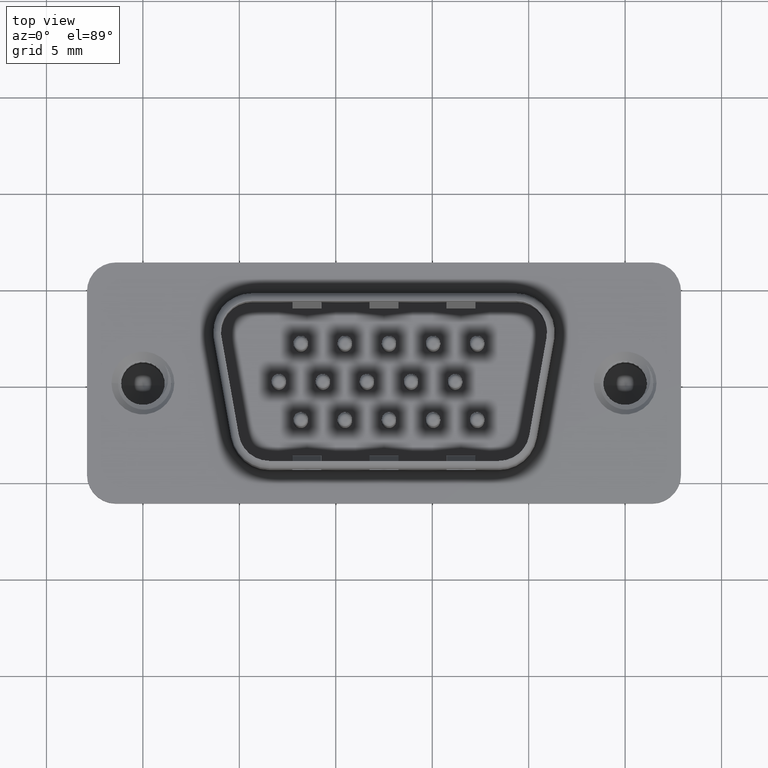
[diagram: clean part render]
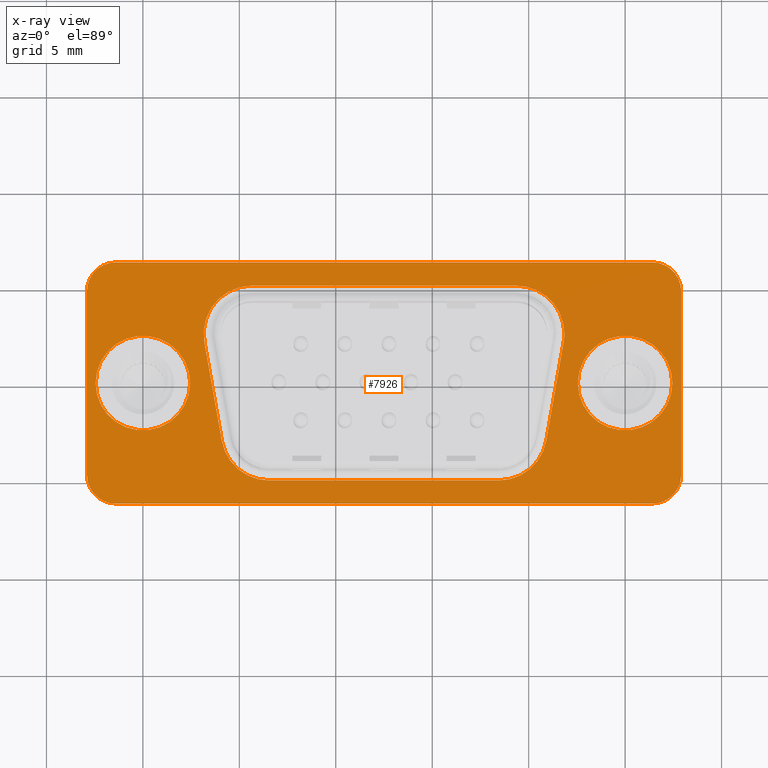
[diagram: x-ray — body ghosted, one internal face saturated and labeled with its STEP entity id]
A machine part, top view, then the same camera in x-ray: the body is ghosted and one INTERNAL B-rep face — a face not visible from any outside direction — is saturated and labeled: STEP entity #7926.
In plain terms, the highlighted planar face has unit normal (0, 0, 1).
Its self-contained STEP definition (entity closure, byte-faithful):
#47 = CARTESIAN_POINT ( 'NONE',  ( 21.85000000000000900, 2.550000000000000300, -2.168404344971008900E-016 ) ) ;
#56 = DIRECTION ( 'NONE',  ( -0.0000000000000000000, -0.0000000000000000000, -1.000000000000000000 ) ) ;
#93 = VERTEX_POINT ( 'NONE', #3351 ) ;
#225 = CARTESIAN_POINT ( 'NONE',  ( -1.399999999999998600, 4.750000000000001800, 0.0000000000000000000 ) ) ;
#278 = DIRECTION ( 'NONE',  ( 1.000000000000000000, 0.0000000000000000000, -0.0000000000000000000 ) ) ;
#288 = CARTESIAN_POINT ( 'NONE',  ( 25.00000000000000000, 4.592425496802574400E-015, 0.0000000000000000000 ) ) ;
#481 = CARTESIAN_POINT ( 'NONE',  ( 26.40000000000001300, 6.250000000000006200, 0.0000000000000000000 ) ) ;
#504 = CARTESIAN_POINT ( 'NONE',  ( -1.399999999999998600, 6.250000000000000900, 0.0000000000000000000 ) ) ;
#507 = EDGE_CURVE ( 'NONE', #16528, #2810, #9299, .T. ) ;
#548 = VERTEX_POINT ( 'NONE', #1037 ) ;
#790 = VERTEX_POINT ( 'NONE', #5424 ) ;
#876 = LINE ( 'NONE', #1041, #6902 ) ;
#947 = DIRECTION ( 'NONE',  ( -0.0000000000000000000, -0.0000000000000000000, -1.000000000000000000 ) ) ;
#1024 = CIRCLE ( 'NONE', #10350, 2.449999999999990400 ) ;
#1037 = CARTESIAN_POINT ( 'NONE',  ( 18.45073239838687600, -5.049999999999998000, 0.0000000000000000000 ) ) ;
#1041 = CARTESIAN_POINT ( 'NONE',  ( 26.40000000000001300, -5.049999999999998000, 0.0000000000000000000 ) ) ;
#1278 = DIRECTION ( 'NONE',  ( -0.0000000000000000000, -0.0000000000000000000, -1.000000000000000000 ) ) ;
#1377 = EDGE_CURVE ( 'NONE', #14141, #93, #5396, .T. ) ;
#1474 = CARTESIAN_POINT ( 'NONE',  ( -2.899999999999998100, -4.750000000000000900, 0.0000000000000000000 ) ) ;
#1554 = ORIENTED_EDGE ( 'NONE', *, *, #11296, .F. ) ;
#1605 = DIRECTION ( 'NONE',  ( 1.000000000000000000, 0.0000000000000000000, 0.0000000000000000000 ) ) ;
#1747 = CIRCLE ( 'NONE', #16416, 2.499999999999998700 ) ;
#1756 = CIRCLE ( 'NONE', #10629, 2.500000000000000400 ) ;
#2075 = ORIENTED_EDGE ( 'NONE', *, *, #13007, .F. ) ;
#2336 = CARTESIAN_POINT ( 'NONE',  ( 26.40000000000000600, -6.249999999999996400, 0.0000000000000000000 ) ) ;
#2579 = CIRCLE ( 'NONE', #9063, 2.500000000000002200 ) ;
#2608 = CARTESIAN_POINT ( 'NONE',  ( 18.45073239838687600, -2.549999999999999800, -2.168404344971008900E-016 ) ) ;
#2619 = EDGE_CURVE ( 'NONE', #12920, #15774, #8170, .T. ) ;
#2635 = VECTOR ( 'NONE', #5265, 1000.000000000000100 ) ;
#2732 = DIRECTION ( 'NONE',  ( -0.0000000000000000000, -1.000000000000000000, -0.0000000000000000000 ) ) ;
#2756 = CARTESIAN_POINT ( 'NONE',  ( 22.55000000000001100, 4.892463962593675200E-015, 0.0000000000000000000 ) ) ;
#2810 = VERTEX_POINT ( 'NONE', #4463 ) ;
#3034 = EDGE_CURVE ( 'NONE', #6780, #9403, #13539, .T. ) ;
#3351 = CARTESIAN_POINT ( 'NONE',  ( 19.35000000000000500, 5.050000000000000700, 0.0000000000000000000 ) ) ;
#3371 = ORIENTED_EDGE ( 'NONE', *, *, #14573, .F. ) ;
#3375 = VERTEX_POINT ( 'NONE', #4648 ) ;
#3747 = AXIS2_PLACEMENT_3D ( 'NONE', #9196, #947, #10570 ) ;
#3776 = VERTEX_POINT ( 'NONE', #16109 ) ;
#3825 = LINE ( 'NONE', #1474, #13876 ) ;
#3995 = DIRECTION ( 'NONE',  ( 1.000000000000000000, 0.0000000000000000000, 0.0000000000000000000 ) ) ;
#4194 = ORIENTED_EDGE ( 'NONE', *, *, #15527, .F. ) ;
#4340 = AXIS2_PLACEMENT_3D ( 'NONE', #4853, #14394, #6254 ) ;
#4396 = EDGE_LOOP ( 'NONE', ( #13880, #16800 ) ) ;
#4463 = CARTESIAN_POINT ( 'NONE',  ( 26.40000000000000600, -6.249999999999996400, 0.0000000000000000000 ) ) ;
#4564 = AXIS2_PLACEMENT_3D ( 'NONE', #4592, #14151, #6006 ) ;
#4589 = ORIENTED_EDGE ( 'NONE', *, *, #12913, .F. ) ;
#4592 = CARTESIAN_POINT ( 'NONE',  ( 6.549267601613140100, -2.549999999999999800, -2.168404344971008900E-016 ) ) ;
#4607 = ORIENTED_EDGE ( 'NONE', *, *, #10867, .F. ) ;
#4629 = DIRECTION ( 'NONE',  ( 1.000000000000000000, 0.0000000000000000000, 0.0000000000000000000 ) ) ;
#4648 = CARTESIAN_POINT ( 'NONE',  ( 21.81201938253054000, 2.115879555832690200, -2.168404344971008900E-016 ) ) ;
#4701 = VERTEX_POINT ( 'NONE', #14642 ) ;
#4791 = CIRCLE ( 'NONE', #14522, 2.449999999999999700 ) ;
#4853 = CARTESIAN_POINT ( 'NONE',  ( 26.40000000000001300, 4.750000000000005300, 0.0000000000000000000 ) ) ;
#4860 = LINE ( 'NONE', #9528, #14863 ) ;
#4885 = CARTESIAN_POINT ( 'NONE',  ( 26.40000000000001300, 5.050000000000000700, 0.0000000000000000000 ) ) ;
#5225 = CARTESIAN_POINT ( 'NONE',  ( 27.90000000000000900, -4.749999999999997300, 0.0000000000000000000 ) ) ;
#5243 = CARTESIAN_POINT ( 'NONE',  ( 26.40000000000001300, 4.750000000000005300, 0.0000000000000000000 ) ) ;
#5265 = DIRECTION ( 'NONE',  ( -0.1736481776669232300, 0.9848077530122093500, -0.0000000000000000000 ) ) ;
#5396 = LINE ( 'NONE', #4885, #15822 ) ;
#5402 = VERTEX_POINT ( 'NONE', #16976 ) ;
#5424 = CARTESIAN_POINT ( 'NONE',  ( -2.899999999999998100, 4.750000000000001800, 0.0000000000000000000 ) ) ;
#5559 = DIRECTION ( 'NONE',  ( -0.0000000000000000000, -0.0000000000000000000, -1.000000000000000000 ) ) ;
#5645 = VECTOR ( 'NONE', #12309, 1000.000000000000000 ) ;
#5842 = DIRECTION ( 'NONE',  ( -0.0000000000000000000, -0.0000000000000000000, -1.000000000000000000 ) ) ;
#5893 = DIRECTION ( 'NONE',  ( 0.0000000000000000000, 0.0000000000000000000, 1.000000000000000000 ) ) ;
#6006 = DIRECTION ( 'NONE',  ( 1.000000000000000000, 0.0000000000000000000, 0.0000000000000000000 ) ) ;
#6078 = CARTESIAN_POINT ( 'NONE',  ( 4.087248219082604300, -2.984120444167309500, -4.336808689942017700E-016 ) ) ;
#6132 = DIRECTION ( 'NONE',  ( -1.000000000000000000, 0.0000000000000000000, 0.0000000000000000000 ) ) ;
#6254 = DIRECTION ( 'NONE',  ( 1.000000000000000000, 0.0000000000000000000, -0.0000000000000000000 ) ) ;
#6278 = EDGE_CURVE ( 'NONE', #3776, #16528, #14092, .T. ) ;
#6377 = ORIENTED_EDGE ( 'NONE', *, *, #1377, .F. ) ;
#6658 = DIRECTION ( 'NONE',  ( 1.000000000000000000, 0.0000000000000000000, 0.0000000000000000000 ) ) ;
#6780 = VERTEX_POINT ( 'NONE', #16388 ) ;
#6798 = EDGE_CURVE ( 'NONE', #9403, #14141, #1756, .T. ) ;
#6902 = VECTOR ( 'NONE', #9278, 1000.000000000000000 ) ;
#6971 = DIRECTION ( 'NONE',  ( 0.0000000000000000000, 0.0000000000000000000, 1.000000000000000000 ) ) ;
#7016 = CARTESIAN_POINT ( 'NONE',  ( 5.650000000000009200, 5.050000000000000700, 0.0000000000000000000 ) ) ;
#7248 = EDGE_LOOP ( 'NONE', ( #10701, #8214, #4589, #3371, #9999, #13096, #4194, #6377, #11889 ) ) ;
#7274 = CARTESIAN_POINT ( 'NONE',  ( -1.399999999999998600, -4.750000000000000900, 0.0000000000000000000 ) ) ;
#7426 = VERTEX_POINT ( 'NONE', #9863 ) ;
#7507 = AXIS2_PLACEMENT_3D ( 'NONE', #5243, #14782, #6658 ) ;
#7661 = CARTESIAN_POINT ( 'NONE',  ( 25.00000000000000000, 4.592425496802574400E-015, 0.0000000000000000000 ) ) ;
#7813 = DIRECTION ( 'NONE',  ( -0.0000000000000000000, -0.0000000000000000000, -1.000000000000000000 ) ) ;
#7926 = ADVANCED_FACE ( 'NONE', ( #9032, #16664, #9885, #9448 ), #13055, .F. ) ;
#8060 = CARTESIAN_POINT ( 'NONE',  ( 26.40000000000001300, 6.250000000000006200, 0.0000000000000000000 ) ) ;
#8111 = ORIENTED_EDGE ( 'NONE', *, *, #507, .F. ) ;
#8170 = CIRCLE ( 'NONE', #15875, 2.449999999999990400 ) ;
#8214 = ORIENTED_EDGE ( 'NONE', *, *, #8458, .F. ) ;
#8458 = EDGE_CURVE ( 'NONE', #13724, #6780, #9013, .T. ) ;
#8925 = EDGE_CURVE ( 'NONE', #790, #3776, #3825, .T. ) ;
#9013 = CIRCLE ( 'NONE', #4564, 2.500000000000002200 ) ;
#9032 = FACE_BOUND ( 'NONE', #4396, .T. ) ;
#9041 = DIRECTION ( 'NONE',  ( 1.000000000000000000, 0.0000000000000000000, 0.0000000000000000000 ) ) ;
#9063 = AXIS2_PLACEMENT_3D ( 'NONE', #9510, #1278, #10884 ) ;
#9146 = EDGE_CURVE ( 'NONE', #17055, #12631, #15756, .T. ) ;
#9196 = CARTESIAN_POINT ( 'NONE',  ( 19.35000000000000500, 2.550000000000000300, -2.168404344971008900E-016 ) ) ;
#9258 = VECTOR ( 'NONE', #12185, 1000.000000000000000 ) ;
#9278 = DIRECTION ( 'NONE',  ( -1.000000000000000000, -0.0000000000000000000, 0.0000000000000000000 ) ) ;
#9299 = LINE ( 'NONE', #2336, #5645 ) ;
#9403 = VERTEX_POINT ( 'NONE', #17390 ) ;
#9448 = FACE_BOUND ( 'NONE', #12623, .T. ) ;
#9510 = CARTESIAN_POINT ( 'NONE',  ( 19.35000000000000500, 2.550000000000000300, -2.168404344971008900E-016 ) ) ;
#9528 = CARTESIAN_POINT ( 'NONE',  ( 21.81201938253053600, 2.115879555832691100, -2.168404344971008900E-016 ) ) ;
#9638 = ORIENTED_EDGE ( 'NONE', *, *, #9146, .F. ) ;
#9666 = ORIENTED_EDGE ( 'NONE', *, *, #13791, .F. ) ;
#9723 = CARTESIAN_POINT ( 'NONE',  ( -1.399999999999998400, -6.250000000000000000, 0.0000000000000000000 ) ) ;
#9829 = DIRECTION ( 'NONE',  ( 0.0000000000000000000, 0.0000000000000000000, 1.000000000000000000 ) ) ;
#9863 = CARTESIAN_POINT ( 'NONE',  ( 27.90000000000000900, -4.749999999999997300, 0.0000000000000000000 ) ) ;
#9885 = FACE_OUTER_BOUND ( 'NONE', #17237, .T. ) ;
#9999 = ORIENTED_EDGE ( 'NONE', *, *, #10222, .F. ) ;
#10103 = DIRECTION ( 'NONE',  ( -1.000000000000000000, -1.872003751054107500E-016, 0.0000000000000000000 ) ) ;
#10130 = ORIENTED_EDGE ( 'NONE', *, *, #8925, .F. ) ;
#10173 = CIRCLE ( 'NONE', #7507, 1.499999999999997800 ) ;
#10222 = EDGE_CURVE ( 'NONE', #3375, #14849, #4860, .T. ) ;
#10350 = AXIS2_PLACEMENT_3D ( 'NONE', #7661, #17182, #9041 ) ;
#10570 = DIRECTION ( 'NONE',  ( 1.000000000000000000, 0.0000000000000000000, 0.0000000000000000000 ) ) ;
#10615 = EDGE_CURVE ( 'NONE', #5402, #4701, #10648, .T. ) ;
#10618 = ORIENTED_EDGE ( 'NONE', *, *, #10615, .F. ) ;
#10629 = AXIS2_PLACEMENT_3D ( 'NONE', #13729, #5559, #15056 ) ;
#10648 = CIRCLE ( 'NONE', #12173, 2.449999999999999700 ) ;
#10701 = ORIENTED_EDGE ( 'NONE', *, *, #3034, .F. ) ;
#10862 = CARTESIAN_POINT ( 'NONE',  ( 27.90000000000000900, 4.750000000000005300, 0.0000000000000000000 ) ) ;
#10867 = EDGE_CURVE ( 'NONE', #4701, #5402, #4791, .T. ) ;
#10884 = DIRECTION ( 'NONE',  ( 1.000000000000000000, 0.0000000000000000000, 0.0000000000000000000 ) ) ;
#11229 = CARTESIAN_POINT ( 'NONE',  ( 6.549267601613138400, -5.050000000000001600, 0.0000000000000000000 ) ) ;
#11296 = EDGE_CURVE ( 'NONE', #13592, #17055, #10173, .T. ) ;
#11348 = VECTOR ( 'NONE', #10103, 1000.000000000000000 ) ;
#11424 = VERTEX_POINT ( 'NONE', #47 ) ;
#11433 = CARTESIAN_POINT ( 'NONE',  ( 20.91275178091740000, -2.984120444167307700, 0.0000000000000000000 ) ) ;
#11585 = ORIENTED_EDGE ( 'NONE', *, *, #6278, .F. ) ;
#11889 = ORIENTED_EDGE ( 'NONE', *, *, #6798, .F. ) ;
#12173 = AXIS2_PLACEMENT_3D ( 'NONE', #15920, #7813, #17332 ) ;
#12185 = DIRECTION ( 'NONE',  ( 0.0000000000000000000, 1.000000000000000000, 0.0000000000000000000 ) ) ;
#12191 = DIRECTION ( 'NONE',  ( -0.0000000000000000000, -0.0000000000000000000, -1.000000000000000000 ) ) ;
#12220 = AXIS2_PLACEMENT_3D ( 'NONE', #7274, #6971, #6132 ) ;
#12309 = DIRECTION ( 'NONE',  ( 1.000000000000000000, 1.560003125878423400E-016, -0.0000000000000000000 ) ) ;
#12480 = EDGE_CURVE ( 'NONE', #12631, #790, #15606, .T. ) ;
#12623 = EDGE_LOOP ( 'NONE', ( #4607, #10618 ) ) ;
#12631 = VERTEX_POINT ( 'NONE', #504 ) ;
#12913 = EDGE_CURVE ( 'NONE', #548, #13724, #876, .T. ) ;
#12920 = VERTEX_POINT ( 'NONE', #14698 ) ;
#13007 = EDGE_CURVE ( 'NONE', #7426, #13592, #16460, .T. ) ;
#13055 = PLANE ( 'NONE',  #4340 ) ;
#13096 = ORIENTED_EDGE ( 'NONE', *, *, #15115, .F. ) ;
#13169 = ORIENTED_EDGE ( 'NONE', *, *, #12480, .F. ) ;
#13539 = LINE ( 'NONE', #6078, #2635 ) ;
#13592 = VERTEX_POINT ( 'NONE', #10862 ) ;
#13724 = VERTEX_POINT ( 'NONE', #11229 ) ;
#13729 = CARTESIAN_POINT ( 'NONE',  ( 5.650000000000007500, 2.550000000000000300, -2.168404344971008900E-016 ) ) ;
#13791 = EDGE_CURVE ( 'NONE', #2810, #7426, #17108, .T. ) ;
#13876 = VECTOR ( 'NONE', #2732, 1000.000000000000000 ) ;
#13880 = ORIENTED_EDGE ( 'NONE', *, *, #2619, .F. ) ;
#13988 = CARTESIAN_POINT ( 'NONE',  ( 0.0000000000000000000, 0.0000000000000000000, 0.0000000000000000000 ) ) ;
#14042 = CARTESIAN_POINT ( 'NONE',  ( 26.40000000000000600, -4.749999999999997300, 0.0000000000000000000 ) ) ;
#14092 = CIRCLE ( 'NONE', #12220, 1.499999999999999600 ) ;
#14141 = VERTEX_POINT ( 'NONE', #7016 ) ;
#14151 = DIRECTION ( 'NONE',  ( -0.0000000000000000000, -0.0000000000000000000, -1.000000000000000000 ) ) ;
#14334 = AXIS2_PLACEMENT_3D ( 'NONE', #225, #9829, #1605 ) ;
#14394 = DIRECTION ( 'NONE',  ( 0.0000000000000000000, 0.0000000000000000000, 1.000000000000000000 ) ) ;
#14522 = AXIS2_PLACEMENT_3D ( 'NONE', #13988, #5842, #15326 ) ;
#14573 = EDGE_CURVE ( 'NONE', #14849, #548, #1747, .T. ) ;
#14642 = CARTESIAN_POINT ( 'NONE',  ( 2.449999999999999700, 0.0000000000000000000, 0.0000000000000000000 ) ) ;
#14698 = CARTESIAN_POINT ( 'NONE',  ( 27.44999999999999200, 4.592425496802574400E-015, 0.0000000000000000000 ) ) ;
#14782 = DIRECTION ( 'NONE',  ( 0.0000000000000000000, 0.0000000000000000000, 1.000000000000000000 ) ) ;
#14849 = VERTEX_POINT ( 'NONE', #11433 ) ;
#14863 = VECTOR ( 'NONE', #16273, 1000.000000000000000 ) ;
#15056 = DIRECTION ( 'NONE',  ( 1.000000000000000000, 0.0000000000000000000, 0.0000000000000000000 ) ) ;
#15115 = EDGE_CURVE ( 'NONE', #11424, #3375, #2579, .T. ) ;
#15326 = DIRECTION ( 'NONE',  ( 1.000000000000000000, 0.0000000000000000000, 0.0000000000000000000 ) ) ;
#15384 = DIRECTION ( 'NONE',  ( 1.000000000000000000, 0.0000000000000000000, 0.0000000000000000000 ) ) ;
#15527 = EDGE_CURVE ( 'NONE', #93, #11424, #16001, .T. ) ;
#15593 = AXIS2_PLACEMENT_3D ( 'NONE', #14042, #5893, #15384 ) ;
#15606 = CIRCLE ( 'NONE', #14334, 1.499999999999999600 ) ;
#15756 = LINE ( 'NONE', #481, #11348 ) ;
#15774 = VERTEX_POINT ( 'NONE', #2756 ) ;
#15822 = VECTOR ( 'NONE', #278, 1000.000000000000000 ) ;
#15875 = AXIS2_PLACEMENT_3D ( 'NONE', #288, #56, #4629 ) ;
#15920 = CARTESIAN_POINT ( 'NONE',  ( 0.0000000000000000000, 0.0000000000000000000, 0.0000000000000000000 ) ) ;
#16001 = CIRCLE ( 'NONE', #3747, 2.500000000000002200 ) ;
#16109 = CARTESIAN_POINT ( 'NONE',  ( -2.899999999999998100, -4.750000000000000900, 0.0000000000000000000 ) ) ;
#16273 = DIRECTION ( 'NONE',  ( -0.1736481776669238900, -0.9848077530122092400, 0.0000000000000000000 ) ) ;
#16388 = CARTESIAN_POINT ( 'NONE',  ( 4.087248219082614900, -2.984120444167307700, 0.0000000000000000000 ) ) ;
#16416 = AXIS2_PLACEMENT_3D ( 'NONE', #2608, #12191, #3995 ) ;
#16460 = LINE ( 'NONE', #5225, #9258 ) ;
#16528 = VERTEX_POINT ( 'NONE', #9723 ) ;
#16664 = FACE_BOUND ( 'NONE', #7248, .T. ) ;
#16800 = ORIENTED_EDGE ( 'NONE', *, *, #16805, .F. ) ;
#16805 = EDGE_CURVE ( 'NONE', #15774, #12920, #1024, .T. ) ;
#16976 = CARTESIAN_POINT ( 'NONE',  ( -2.449999999999999700, 3.000384657911015400E-016, 0.0000000000000000000 ) ) ;
#17055 = VERTEX_POINT ( 'NONE', #8060 ) ;
#17108 = CIRCLE ( 'NONE', #15593, 1.500000000000001300 ) ;
#17182 = DIRECTION ( 'NONE',  ( -0.0000000000000000000, -0.0000000000000000000, -1.000000000000000000 ) ) ;
#17237 = EDGE_LOOP ( 'NONE', ( #1554, #2075, #9666, #8111, #11585, #10130, #13169, #9638 ) ) ;
#17332 = DIRECTION ( 'NONE',  ( 1.000000000000000000, 0.0000000000000000000, 0.0000000000000000000 ) ) ;
#17390 = CARTESIAN_POINT ( 'NONE',  ( 3.187980617469481800, 2.115879555832692400, 0.0000000000000000000 ) ) ;